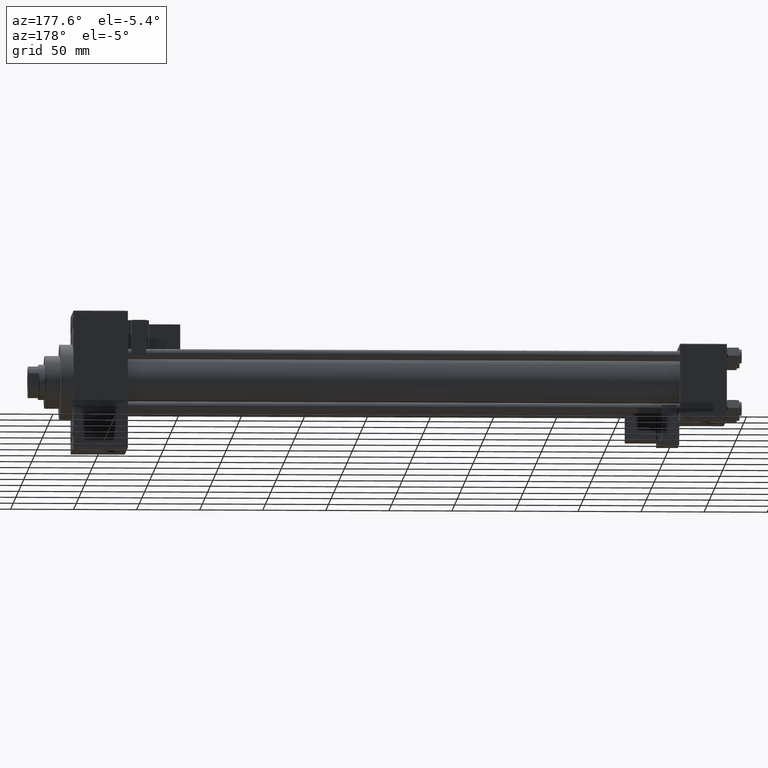
[diagram: clean part render]
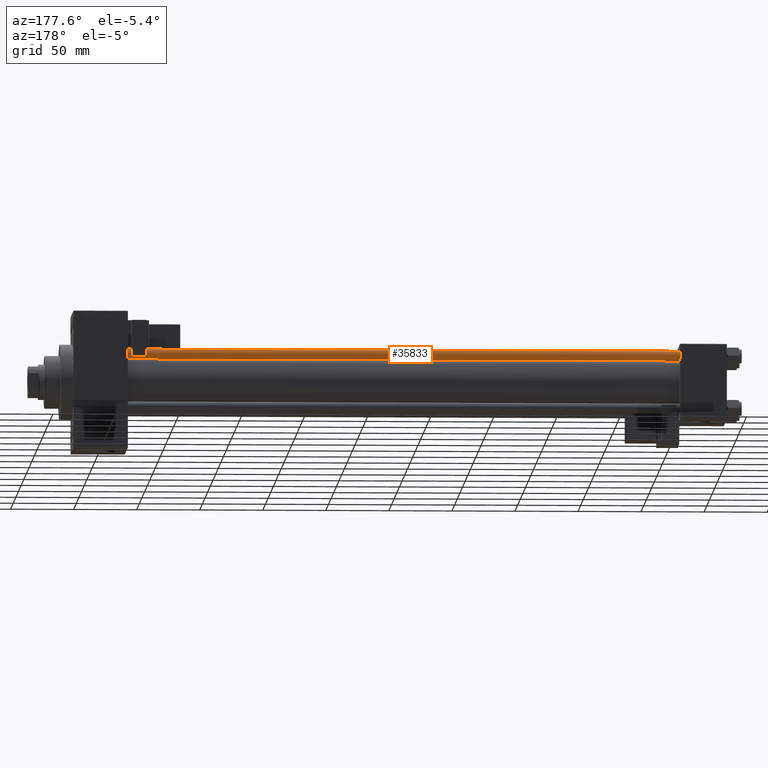
[diagram: same view with one face highlighted and labeled with its STEP entity id]
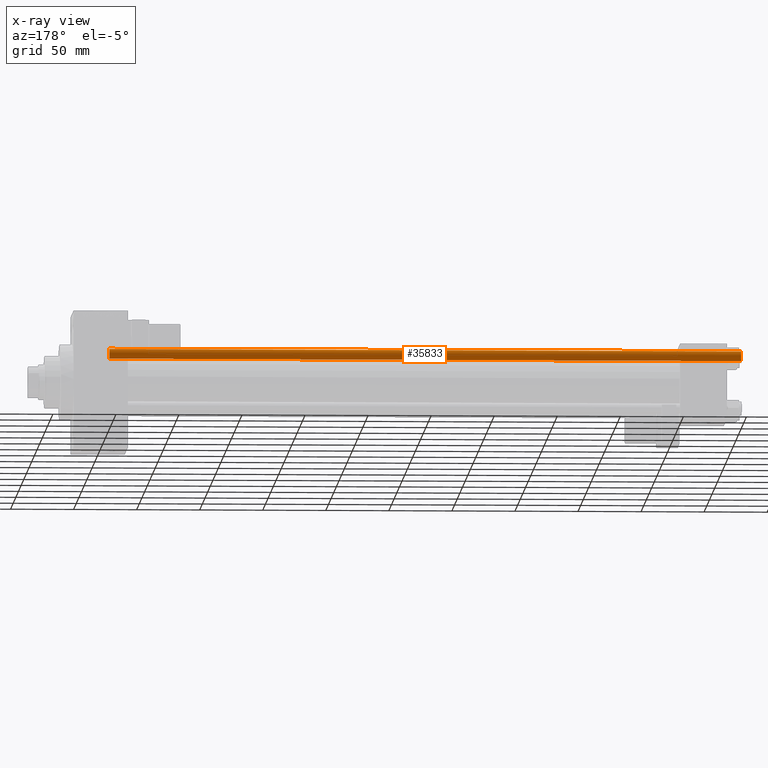
[diagram: x-ray of the same camera — body ghosted, the highlighted face saturated]
A machine part, auxiliary view. The second image highlights one B-rep face of the part: STEP entity #35833.
The next image is the same camera in x-ray: the body ghosted, the highlighted face saturated — about 0% of this face is hidden behind the body in this view.
In plain terms, the highlighted cylindrical surface (edge-blend (fillet) strip) has radius 4 mm, axis along (-1, -0, 0).
Its self-contained STEP definition (entity closure, byte-faithful):
#1537 = DIRECTION ( 'NONE',  ( -0.000000000000000000, -0.000000000000000000, -1.000000000000000000 ) ) ;
#2304 = DIRECTION ( 'NONE',  ( -1.000000000000000000, 0.000000000000000000, 0.000000000000000000 ) ) ;
#2314 = EDGE_CURVE ( 'NONE', #35797, #43050, #35649, .T. ) ;
#2565 = CARTESIAN_POINT ( 'NONE',  ( -4.000000000000000000, 0.000000000000000000, 502.0000000000000000 ) ) ;
#2673 = CARTESIAN_POINT ( 'NONE',  ( 0.000000000000000000, 0.000000000000000000, 501.4999999999999432 ) ) ;
#9362 = CARTESIAN_POINT ( 'NONE',  ( -4.000000000000000000, 0.000000000000000000, 501.4999999999999432 ) ) ;
#9611 = VECTOR ( 'NONE', #34834, 1000.000000000000000 ) ;
#11112 = CARTESIAN_POINT ( 'NONE',  ( 4.000000000000000000, 4.898587196589412829E-16, 502.0000000000000000 ) ) ;
#11173 = ORIENTED_EDGE ( 'NONE', *, *, #50474, .T. ) ;
#14027 = CYLINDRICAL_SURFACE ( 'NONE', #22072, 4.000000000000000000 ) ;
#14286 = LINE ( 'NONE', #2565, #9611 ) ;
#15815 = CARTESIAN_POINT ( 'NONE',  ( 4.000000000000000000, 4.898587196589412829E-16, 0.4999999999999449329 ) ) ;
#15928 = EDGE_LOOP ( 'NONE', ( #37576, #45120, #11173, #38595 ) ) ;
#16687 = EDGE_CURVE ( 'NONE', #35797, #31022, #14286, .T. ) ;
#19852 = AXIS2_PLACEMENT_3D ( 'NONE', #2673, #38349, #42773 ) ;
#22072 = AXIS2_PLACEMENT_3D ( 'NONE', #29902, #1537, #2304 ) ;
#22086 = FACE_OUTER_BOUND ( 'NONE', #15928, .T. ) ;
#25882 = CIRCLE ( 'NONE', #35843, 4.000000000000000000 ) ;
#28870 = EDGE_CURVE ( 'NONE', #43050, #48396, #35064, .T. ) ;
#29902 = CARTESIAN_POINT ( 'NONE',  ( 0.000000000000000000, 0.000000000000000000, 502.0000000000000000 ) ) ;
#31022 = VERTEX_POINT ( 'NONE', #41632 ) ;
#31903 = CARTESIAN_POINT ( 'NONE',  ( 0.000000000000000000, 0.000000000000000000, 0.4999999999999449329 ) ) ;
#32162 = DIRECTION ( 'NONE',  ( -0.000000000000000000, -0.000000000000000000, 1.000000000000000000 ) ) ;
#34834 = DIRECTION ( 'NONE',  ( -0.000000000000000000, -0.000000000000000000, -1.000000000000000000 ) ) ;
#35064 = LINE ( 'NONE', #11112, #47375 ) ;
#35649 = CIRCLE ( 'NONE', #19852, 4.000000000000000000 ) ;
#35797 = VERTEX_POINT ( 'NONE', #9362 ) ;
#35833 = ADVANCED_FACE ( 'NONE', ( #22086 ), #14027, .T. ) ;
#35843 = AXIS2_PLACEMENT_3D ( 'NONE', #31903, #32162, #43390 ) ;
#37466 = CARTESIAN_POINT ( 'NONE',  ( 4.000000000000000000, 4.898587196589412829E-16, 501.4999999999999432 ) ) ;
#37576 = ORIENTED_EDGE ( 'NONE', *, *, #2314, .T. ) ;
#38349 = DIRECTION ( 'NONE',  ( 0.000000000000000000, 0.000000000000000000, -1.000000000000000000 ) ) ;
#38595 = ORIENTED_EDGE ( 'NONE', *, *, #16687, .F. ) ;
#41632 = CARTESIAN_POINT ( 'NONE',  ( -4.000000000000000000, 0.000000000000000000, 0.4999999999999449329 ) ) ;
#42773 = DIRECTION ( 'NONE',  ( 1.000000000000000000, 0.000000000000000000, 0.000000000000000000 ) ) ;
#43050 = VERTEX_POINT ( 'NONE', #37466 ) ;
#43390 = DIRECTION ( 'NONE',  ( 1.000000000000000000, 0.000000000000000000, 0.000000000000000000 ) ) ;
#45120 = ORIENTED_EDGE ( 'NONE', *, *, #28870, .T. ) ;
#46527 = DIRECTION ( 'NONE',  ( -0.000000000000000000, -0.000000000000000000, -1.000000000000000000 ) ) ;
#47375 = VECTOR ( 'NONE', #46527, 1000.000000000000000 ) ;
#48396 = VERTEX_POINT ( 'NONE', #15815 ) ;
#50474 = EDGE_CURVE ( 'NONE', #48396, #31022, #25882, .T. ) ;